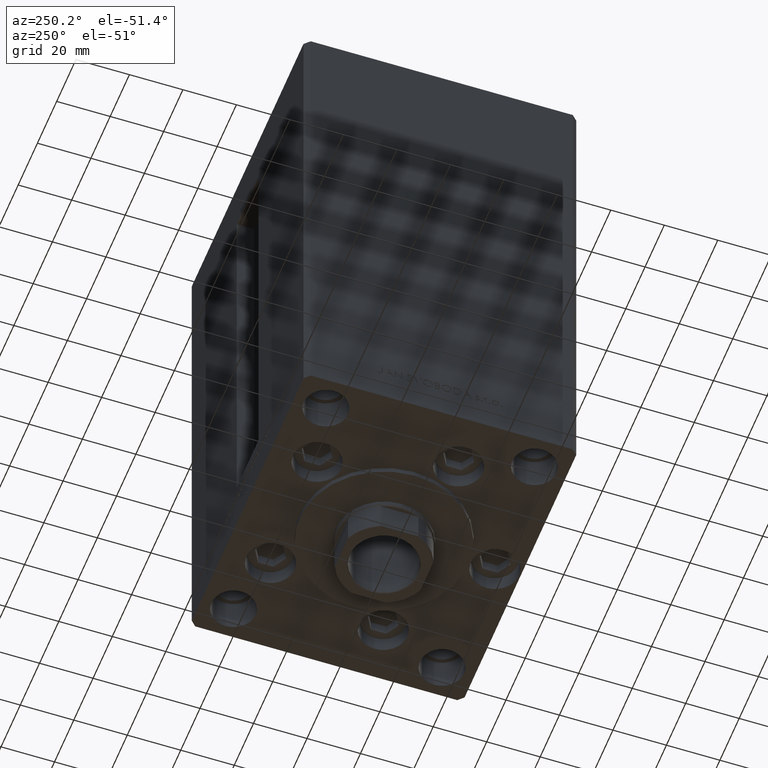
[diagram: clean part render]
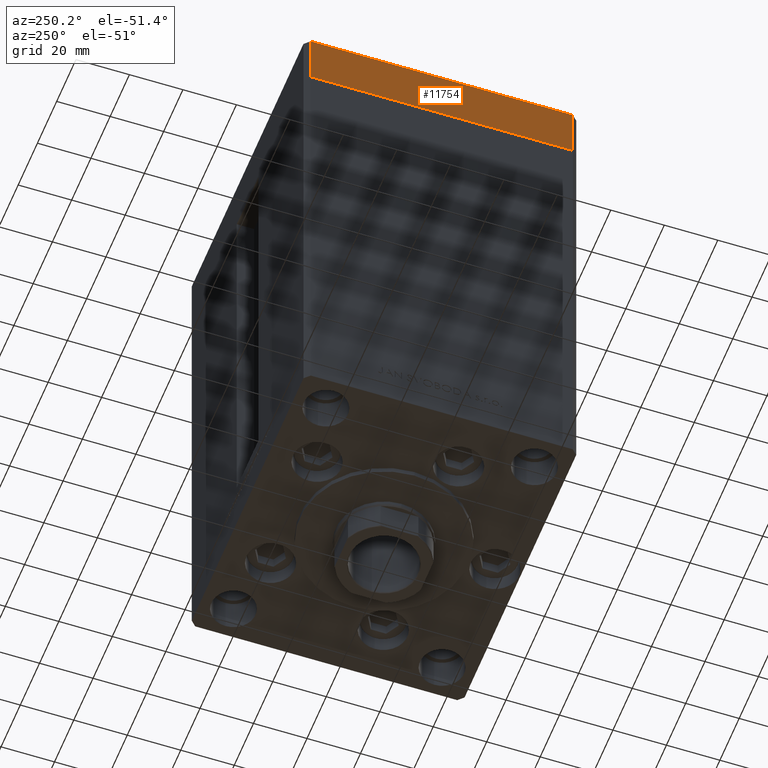
[diagram: same view with one face highlighted and labeled with its STEP entity id]
A machine part, auxiliary view. The second image highlights one B-rep face of the part: STEP entity #11754.
In plain terms, the highlighted planar face has unit normal (-1, 0, 0).
Its self-contained STEP definition (entity closure, byte-faithful):
#330 = CARTESIAN_POINT ( 'NONE',  ( -60.00000000000000000, -49.00000000000000000, 0.000000000000000000 ) ) ;
#1123 = DIRECTION ( 'NONE',  ( 0.000000000000000000, -1.000000000000000000, 0.000000000000000000 ) ) ;
#1532 = ORIENTED_EDGE ( 'NONE', *, *, #13213, .T. ) ;
#1629 = VERTEX_POINT ( 'NONE', #28178 ) ;
#1739 = VERTEX_POINT ( 'NONE', #330 ) ;
#1955 = LINE ( 'NONE', #29022, #13244 ) ;
#2241 = VECTOR ( 'NONE', #25860, 1000.000000000000000 ) ;
#3015 = CARTESIAN_POINT ( 'NONE',  ( -60.00000000000000000, -49.00000000000000000, -20.00000000000000000 ) ) ;
#5382 = AXIS2_PLACEMENT_3D ( 'NONE', #24268, #46893, #47379 ) ;
#6248 = EDGE_CURVE ( 'NONE', #33502, #1739, #1955, .T. ) ;
#11106 = ORIENTED_EDGE ( 'NONE', *, *, #12205, .F. ) ;
#11541 = EDGE_LOOP ( 'NONE', ( #24214, #11106, #48189, #1532 ) ) ;
#11754 = ADVANCED_FACE ( 'NONE', ( #47131 ), #44145, .T. ) ;
#12205 = EDGE_CURVE ( 'NONE', #1629, #33502, #29660, .T. ) ;
#12215 = VECTOR ( 'NONE', #1123, 1000.000000000000000 ) ;
#13213 = EDGE_CURVE ( 'NONE', #28097, #1739, #25619, .T. ) ;
#13244 = VECTOR ( 'NONE', #32748, 1000.000000000000000 ) ;
#16501 = VECTOR ( 'NONE', #33139, 1000.000000000000000 ) ;
#19042 = LINE ( 'NONE', #34183, #12215 ) ;
#21469 = CARTESIAN_POINT ( 'NONE',  ( -60.00000000000000000, 48.99999999999995737, -20.00000000000000000 ) ) ;
#24214 = ORIENTED_EDGE ( 'NONE', *, *, #6248, .F. ) ;
#24268 = CARTESIAN_POINT ( 'NONE',  ( -60.00000000000000000, 48.99999999999995737, -20.00000000000000000 ) ) ;
#25619 = LINE ( 'NONE', #3015, #2241 ) ;
#25860 = DIRECTION ( 'NONE',  ( 0.000000000000000000, 0.000000000000000000, 1.000000000000000000 ) ) ;
#28097 = VERTEX_POINT ( 'NONE', #28562 ) ;
#28178 = CARTESIAN_POINT ( 'NONE',  ( -60.00000000000000000, 48.99999999999995737, -20.00000000000000000 ) ) ;
#28562 = CARTESIAN_POINT ( 'NONE',  ( -60.00000000000000000, -49.00000000000000000, -20.00000000000000000 ) ) ;
#29022 = CARTESIAN_POINT ( 'NONE',  ( -60.00000000000000000, 48.99999999999995737, 0.000000000000000000 ) ) ;
#29660 = LINE ( 'NONE', #21469, #16501 ) ;
#32748 = DIRECTION ( 'NONE',  ( 0.000000000000000000, -1.000000000000000000, 0.000000000000000000 ) ) ;
#33139 = DIRECTION ( 'NONE',  ( 0.000000000000000000, 0.000000000000000000, 1.000000000000000000 ) ) ;
#33502 = VERTEX_POINT ( 'NONE', #39830 ) ;
#34183 = CARTESIAN_POINT ( 'NONE',  ( -60.00000000000000000, 48.99999999999995737, -20.00000000000000000 ) ) ;
#39830 = CARTESIAN_POINT ( 'NONE',  ( -60.00000000000000000, 48.99999999999995737, 0.000000000000000000 ) ) ;
#40005 = EDGE_CURVE ( 'NONE', #1629, #28097, #19042, .T. ) ;
#44145 = PLANE ( 'NONE',  #5382 ) ;
#46893 = DIRECTION ( 'NONE',  ( -1.000000000000000000, 0.000000000000000000, 0.000000000000000000 ) ) ;
#47131 = FACE_OUTER_BOUND ( 'NONE', #11541, .T. ) ;
#47379 = DIRECTION ( 'NONE',  ( 0.000000000000000000, 0.000000000000000000, 1.000000000000000000 ) ) ;
#48189 = ORIENTED_EDGE ( 'NONE', *, *, #40005, .T. ) ;